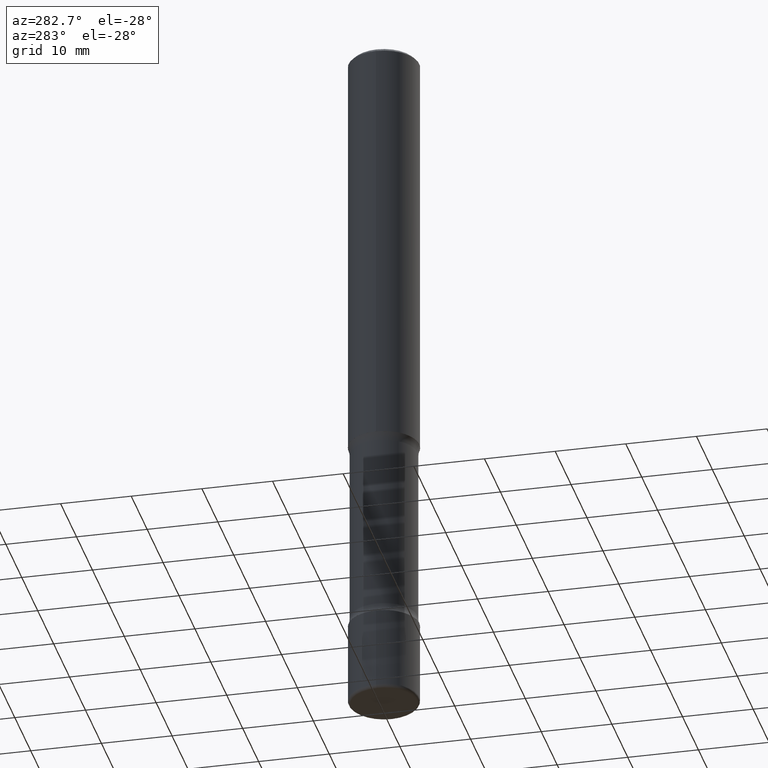
[diagram: clean part render]
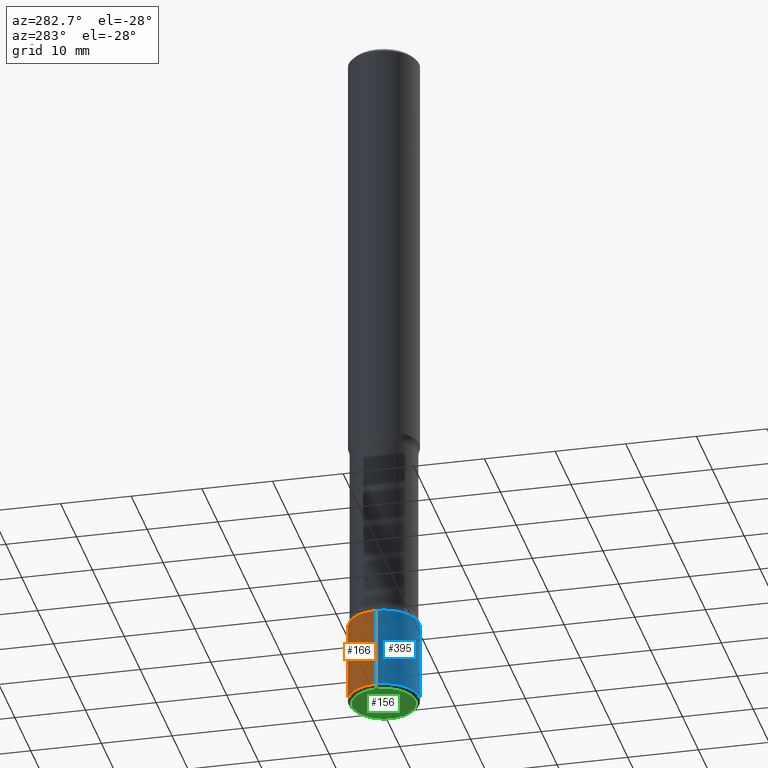
[diagram: same view with three faces highlighted in distinct colors, each labeled with its STEP entity id]
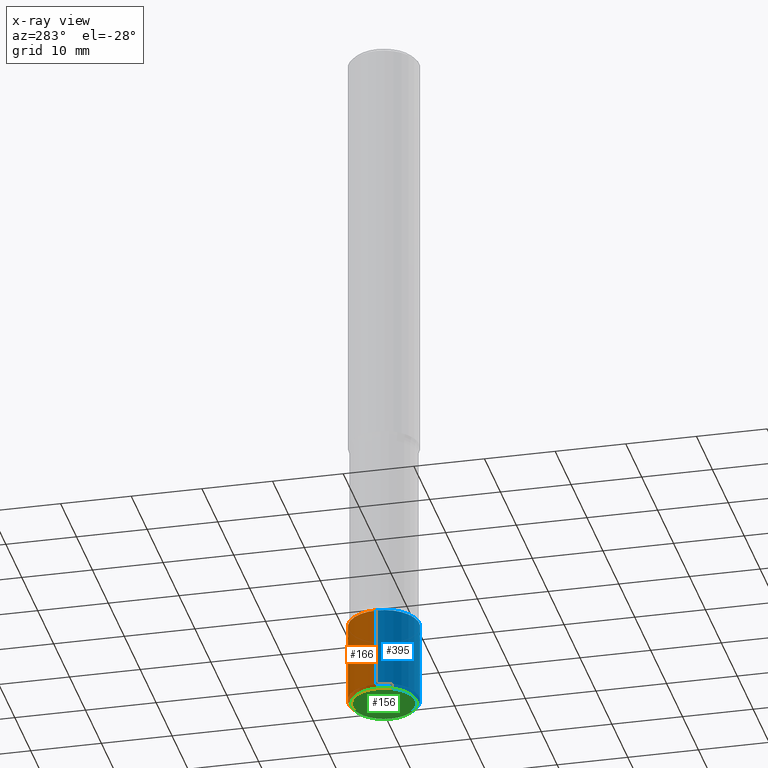
[diagram: x-ray of the same camera — body ghosted, the three highlighted faces saturated]
A machine part, auxiliary view with three faces highlighted in distinct colors.
The next image is the same camera in x-ray (body ghosted, the three faces saturated) — at least one of them is partly hidden behind the body in this view.
Their STEP definitions:

[orange] entity #166 — the highlighted cylindrical surface (edge-blend (fillet) strip) has radius 5 mm, axis along (-0, 0, 1).
#5 = DIRECTION ( 'NONE',  ( -2.445468806185136597E-29, 3.491481338843145583E-15, 1.000000000000000000 ) ) ;
#7 = AXIS2_PLACEMENT_3D ( 'NONE', #384, #115, #289 ) ;
#37 = FACE_OUTER_BOUND ( 'NONE', #148, .T. ) ;
#40 = AXIS2_PLACEMENT_3D ( 'NONE', #427, #5, #349 ) ;
#58 = VERTEX_POINT ( 'NONE', #205 ) ;
#86 = VERTEX_POINT ( 'NONE', #547 ) ;
#104 = ORIENTED_EDGE ( 'NONE', *, *, #227, .F. ) ;
#115 = DIRECTION ( 'NONE',  ( -2.445468806185136597E-29, 3.491481338843145583E-15, 1.000000000000000000 ) ) ;
#144 = ORIENTED_EDGE ( 'NONE', *, *, #510, .F. ) ;
#145 = DIRECTION ( 'NONE',  ( -2.445468806185136877E-29, 3.491481338843145188E-15, 1.000000000000000000 ) ) ;
#148 = EDGE_LOOP ( 'NONE', ( #258, #237, #104, #144 ) ) ;
#166 = ADVANCED_FACE ( 'NONE', ( #37 ), #211, .T. ) ;
#185 = CARTESIAN_POINT ( 'NONE',  ( 9.579634954469039174E-29, -1.367717984865026012E-14, -3.917300000000001337 ) ) ;
#189 = CARTESIAN_POINT ( 'NONE',  ( -0.1968500000000001082, 1.398703375343757985E-15, -9.682923725166787881E-30 ) ) ;
#205 = CARTESIAN_POINT ( 'NONE',  ( 0.1968500000000001360, -1.347118244965850850E-14, -3.464600000000001234 ) ) ;
#211 = CYLINDRICAL_SURFACE ( 'NONE', #7, 0.1968500000000001082 ) ;
#227 = EDGE_CURVE ( 'NONE', #58, #86, #458, .T. ) ;
#237 = ORIENTED_EDGE ( 'NONE', *, *, #494, .T. ) ;
#258 = ORIENTED_EDGE ( 'NONE', *, *, #467, .T. ) ;
#285 = VECTOR ( 'NONE', #534, 39.37007874015748143 ) ;
#289 = DIRECTION ( 'NONE',  ( 1.000000000000000000, -6.982962677686266711E-15, 4.876176775795935793E-29 ) ) ;
#327 = DIRECTION ( 'NONE',  ( 1.000000000000000000, -6.982962677686265922E-15, 0.000000000000000000 ) ) ;
#346 = AXIS2_PLACEMENT_3D ( 'NONE', #185, #407, #327 ) ;
#349 = DIRECTION ( 'NONE',  ( 1.000000000000000000, -6.982962677686263555E-15, 0.000000000000000000 ) ) ;
#365 = CARTESIAN_POINT ( 'NONE',  ( 0.1968500000000001082, -1.374596203102542397E-15, 9.598753983154305062E-30 ) ) ;
#384 = CARTESIAN_POINT ( 'NONE',  ( 0.000000000000000000, 0.000000000000000000, 0.000000000000000000 ) ) ;
#407 = DIRECTION ( 'NONE',  ( -2.445468806185136597E-29, 3.491481338843145583E-15, 1.000000000000000000 ) ) ;
#427 = CARTESIAN_POINT ( 'NONE',  ( 8.472571225909027026E-29, -1.209658624655596689E-14, -3.464600000000001234 ) ) ;
#442 = CIRCLE ( 'NONE', #346, 0.1968500000000000805 ) ;
#453 = VERTEX_POINT ( 'NONE', #484 ) ;
#458 = CIRCLE ( 'NONE', #40, 0.1968500000000001360 ) ;
#467 = EDGE_CURVE ( 'NONE', #453, #530, #442, .T. ) ;
#484 = CARTESIAN_POINT ( 'NONE',  ( 0.1968499999999997752, -1.505177605175279857E-14, -3.917300000000001337 ) ) ;
#494 = EDGE_CURVE ( 'NONE', #530, #86, #536, .T. ) ;
#510 = EDGE_CURVE ( 'NONE', #453, #58, #531, .T. ) ;
#514 = VECTOR ( 'NONE', #145, 39.37007874015748143 ) ;
#530 = VERTEX_POINT ( 'NONE', #543 ) ;
#531 = LINE ( 'NONE', #365, #285 ) ;
#534 = DIRECTION ( 'NONE',  ( -2.445468806185136877E-29, 3.491481338843145188E-15, 1.000000000000000000 ) ) ;
#536 = LINE ( 'NONE', #189, #514 ) ;
#543 = CARTESIAN_POINT ( 'NONE',  ( -0.1968499999999997752, -1.227847647330650312E-14, -3.917300000000001337 ) ) ;
#547 = CARTESIAN_POINT ( 'NONE',  ( -0.1968500000000001360, -1.148817967225935572E-14, -3.464600000000001234 ) ) ;

[blue] entity #395 — the highlighted cylindrical surface (edge-blend (fillet) strip) has radius 5 mm, axis along (-0, 0, 1).
#14 = EDGE_CURVE ( 'NONE', #86, #58, #79, .T. ) ;
#58 = VERTEX_POINT ( 'NONE', #205 ) ;
#70 = CARTESIAN_POINT ( 'NONE',  ( 9.579634954469039174E-29, -1.367717984865026012E-14, -3.917300000000001337 ) ) ;
#79 = CIRCLE ( 'NONE', #469, 0.1968500000000001360 ) ;
#86 = VERTEX_POINT ( 'NONE', #547 ) ;
#112 = CARTESIAN_POINT ( 'NONE',  ( 0.000000000000000000, 0.000000000000000000, 0.000000000000000000 ) ) ;
#143 = FACE_OUTER_BOUND ( 'NONE', #174, .T. ) ;
#145 = DIRECTION ( 'NONE',  ( -2.445468806185136877E-29, 3.491481338843145188E-15, 1.000000000000000000 ) ) ;
#152 = DIRECTION ( 'NONE',  ( -2.445468806185136597E-29, 3.491481338843145583E-15, 1.000000000000000000 ) ) ;
#170 = EDGE_CURVE ( 'NONE', #530, #453, #364, .T. ) ;
#174 = EDGE_LOOP ( 'NONE', ( #271, #336, #228, #478 ) ) ;
#180 = DIRECTION ( 'NONE',  ( -2.445468806185136597E-29, 3.491481338843145583E-15, 1.000000000000000000 ) ) ;
#189 = CARTESIAN_POINT ( 'NONE',  ( -0.1968500000000001082, 1.398703375343757985E-15, -9.682923725166787881E-30 ) ) ;
#196 = AXIS2_PLACEMENT_3D ( 'NONE', #112, #180, #401 ) ;
#205 = CARTESIAN_POINT ( 'NONE',  ( 0.1968500000000001360, -1.347118244965850850E-14, -3.464600000000001234 ) ) ;
#228 = ORIENTED_EDGE ( 'NONE', *, *, #510, .T. ) ;
#271 = ORIENTED_EDGE ( 'NONE', *, *, #494, .F. ) ;
#282 = CYLINDRICAL_SURFACE ( 'NONE', #196, 0.1968500000000001082 ) ;
#285 = VECTOR ( 'NONE', #534, 39.37007874015748143 ) ;
#290 = DIRECTION ( 'NONE',  ( 1.000000000000000000, -6.982962677686265922E-15, 0.000000000000000000 ) ) ;
#336 = ORIENTED_EDGE ( 'NONE', *, *, #170, .T. ) ;
#364 = CIRCLE ( 'NONE', #382, 0.1968500000000000805 ) ;
#365 = CARTESIAN_POINT ( 'NONE',  ( 0.1968500000000001082, -1.374596203102542397E-15, 9.598753983154305062E-30 ) ) ;
#382 = AXIS2_PLACEMENT_3D ( 'NONE', #70, #500, #290 ) ;
#395 = ADVANCED_FACE ( 'NONE', ( #143 ), #282, .T. ) ;
#401 = DIRECTION ( 'NONE',  ( 1.000000000000000000, -6.982962677686266711E-15, 4.876176775795935793E-29 ) ) ;
#402 = DIRECTION ( 'NONE',  ( 1.000000000000000000, -6.982962677686263555E-15, 0.000000000000000000 ) ) ;
#453 = VERTEX_POINT ( 'NONE', #484 ) ;
#469 = AXIS2_PLACEMENT_3D ( 'NONE', #544, #152, #402 ) ;
#478 = ORIENTED_EDGE ( 'NONE', *, *, #14, .F. ) ;
#484 = CARTESIAN_POINT ( 'NONE',  ( 0.1968499999999997752, -1.505177605175279857E-14, -3.917300000000001337 ) ) ;
#494 = EDGE_CURVE ( 'NONE', #530, #86, #536, .T. ) ;
#500 = DIRECTION ( 'NONE',  ( -2.445468806185136597E-29, 3.491481338843145583E-15, 1.000000000000000000 ) ) ;
#510 = EDGE_CURVE ( 'NONE', #453, #58, #531, .T. ) ;
#514 = VECTOR ( 'NONE', #145, 39.37007874015748143 ) ;
#530 = VERTEX_POINT ( 'NONE', #543 ) ;
#531 = LINE ( 'NONE', #365, #285 ) ;
#534 = DIRECTION ( 'NONE',  ( -2.445468806185136877E-29, 3.491481338843145188E-15, 1.000000000000000000 ) ) ;
#536 = LINE ( 'NONE', #189, #514 ) ;
#543 = CARTESIAN_POINT ( 'NONE',  ( -0.1968499999999997752, -1.227847647330650312E-14, -3.917300000000001337 ) ) ;
#544 = CARTESIAN_POINT ( 'NONE',  ( 8.472571225909027026E-29, -1.209658624655596689E-14, -3.464600000000001234 ) ) ;
#547 = CARTESIAN_POINT ( 'NONE',  ( -0.1968500000000001360, -1.148817967225935572E-14, -3.464600000000001234 ) ) ;

[green] entity #156 — the highlighted planar face has unit normal (0, -0, -1).
#12 = CARTESIAN_POINT ( 'NONE',  ( 0.1771500000000001129, -1.498299386937758739E-14, -3.937000000000000277 ) ) ;
#23 = VERTEX_POINT ( 'NONE', #12 ) ;
#29 = FACE_OUTER_BOUND ( 'NONE', #65, .T. ) ;
#36 = DIRECTION ( 'NONE',  ( -1.000000000000000000, 6.982962677686265922E-15, -4.876176775795935793E-29 ) ) ;
#49 = EDGE_CURVE ( 'NONE', #350, #23, #51, .T. ) ;
#51 = CIRCLE ( 'NONE', #372, 0.1771500000000001129 ) ;
#65 = EDGE_LOOP ( 'NONE', ( #95, #284 ) ) ;
#95 = ORIENTED_EDGE ( 'NONE', *, *, #371, .F. ) ;
#121 = DIRECTION ( 'NONE',  ( 1.000000000000000000, -6.982962677686268288E-15, 0.000000000000000000 ) ) ;
#123 = DIRECTION ( 'NONE',  ( 2.438088387897960049E-29, -3.491481338843145188E-15, -1.000000000000000000 ) ) ;
#156 = ADVANCED_FACE ( 'NONE', ( #29 ), #377, .T. ) ;
#175 = CIRCLE ( 'NONE', #431, 0.1771500000000001129 ) ;
#241 = DIRECTION ( 'NONE',  ( 1.000000000000000000, -6.982962677686268288E-15, 0.000000000000000000 ) ) ;
#244 = CARTESIAN_POINT ( 'NONE',  ( 9.627810689950883669E-29, -1.374596203102546341E-14, -3.937000000000000277 ) ) ;
#284 = ORIENTED_EDGE ( 'NONE', *, *, #49, .F. ) ;
#331 = DIRECTION ( 'NONE',  ( -2.445468806185136597E-29, 3.491481338843145583E-15, 1.000000000000000000 ) ) ;
#341 = DIRECTION ( 'NONE',  ( -2.445468806185136597E-29, 3.491481338843145583E-15, 1.000000000000000000 ) ) ;
#350 = VERTEX_POINT ( 'NONE', #440 ) ;
#371 = EDGE_CURVE ( 'NONE', #23, #350, #175, .T. ) ;
#372 = AXIS2_PLACEMENT_3D ( 'NONE', #244, #341, #121 ) ;
#377 = PLANE ( 'NONE',  #526 ) ;
#425 = CARTESIAN_POINT ( 'NONE',  ( 2.658603989477930593E-28, 1.053918739275372060E-14, -3.937000000000000721 ) ) ;
#431 = AXIS2_PLACEMENT_3D ( 'NONE', #492, #331, #241 ) ;
#440 = CARTESIAN_POINT ( 'NONE',  ( -0.1771500000000001129, -1.238285602396647797E-14, -3.937000000000000277 ) ) ;
#492 = CARTESIAN_POINT ( 'NONE',  ( 9.627810689950883669E-29, -1.374596203102546341E-14, -3.937000000000000277 ) ) ;
#526 = AXIS2_PLACEMENT_3D ( 'NONE', #425, #123, #36 ) ;